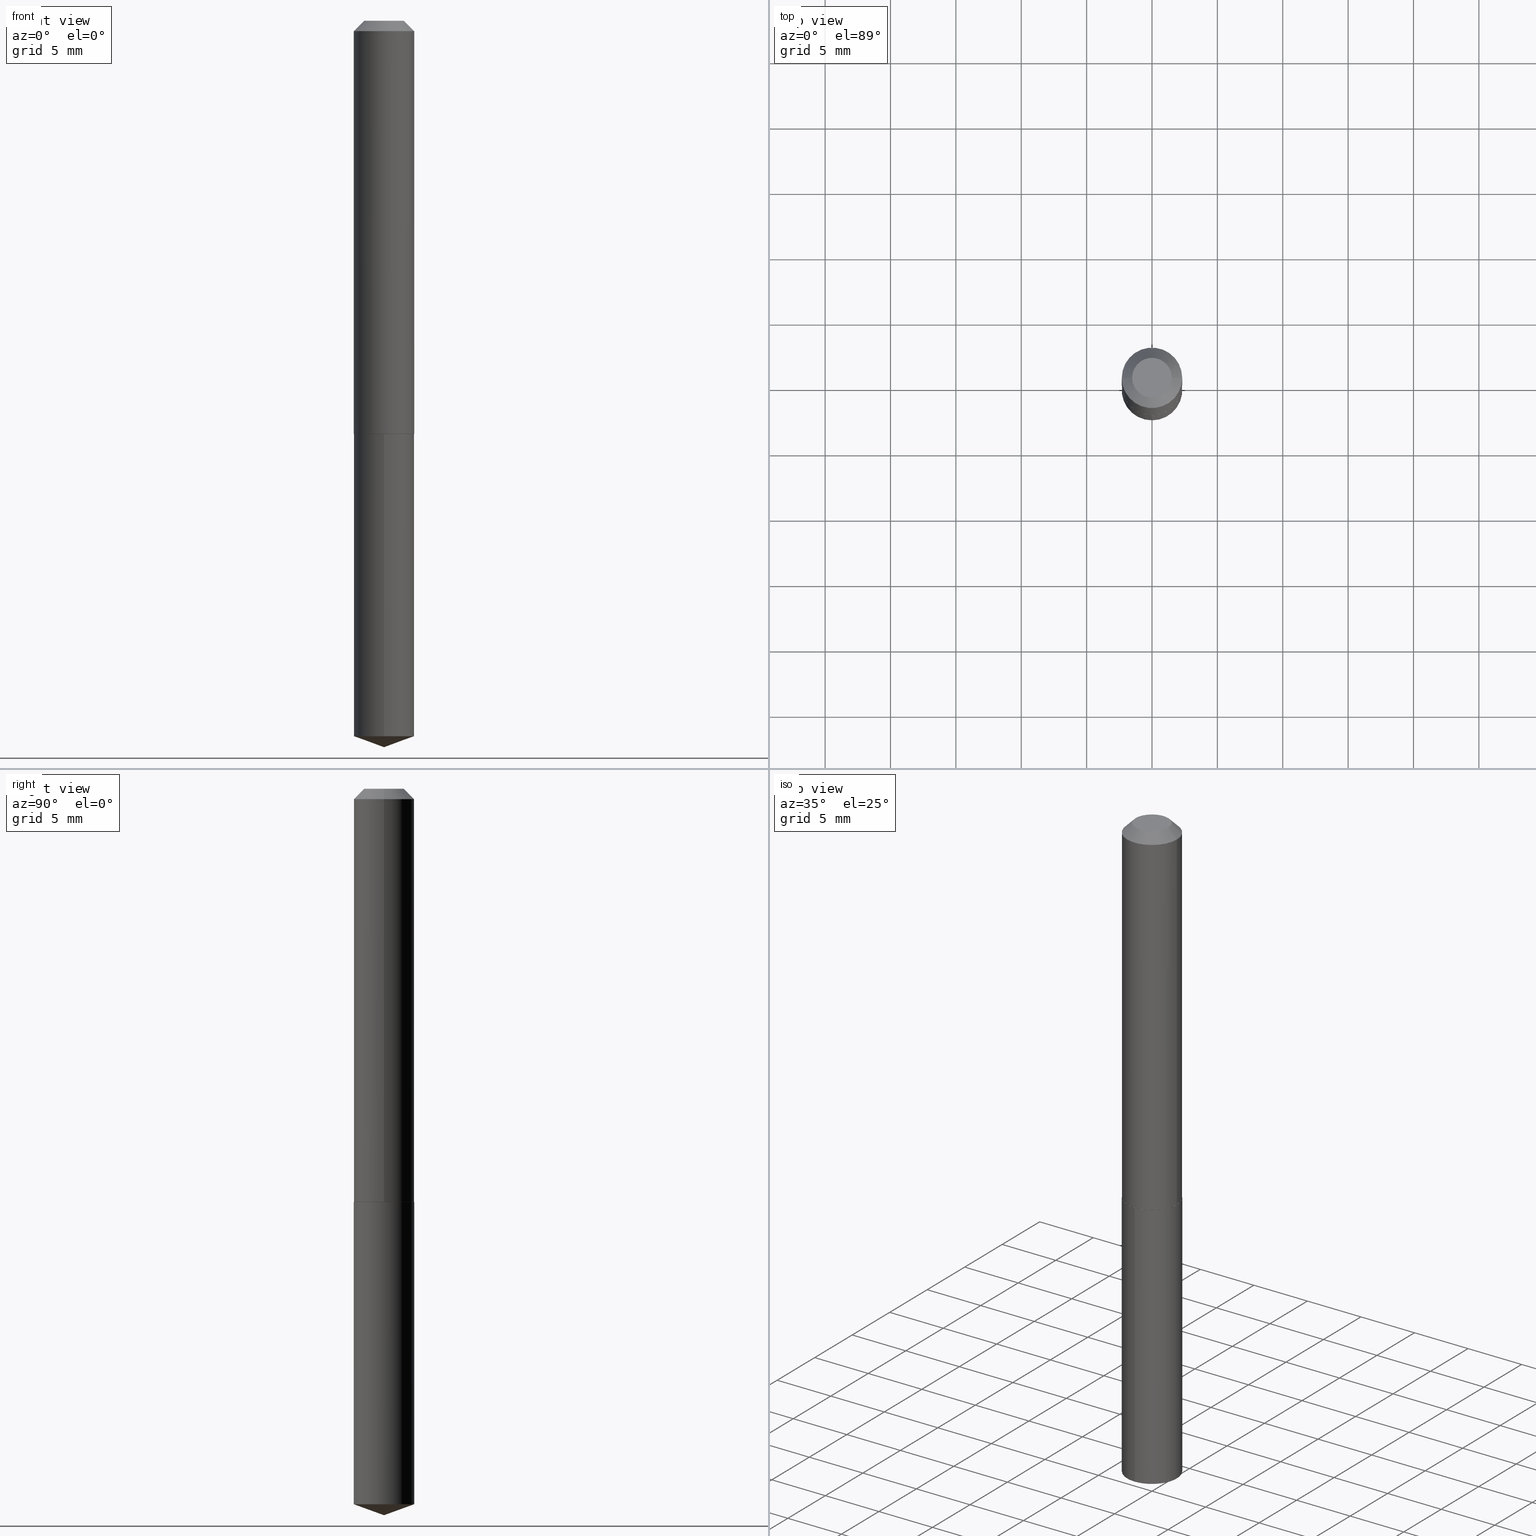
[diagram: canonical four-view strip — front | top / right | iso, engineering-drawing reading convention]
A machine part, canonical four-view strip (front | top / right | iso — engineering-drawing reading convention). The complete STEP part file that produces these views, byte-faithful:
ISO-10303-21;
HEADER;
FILE_DESCRIPTION (( 'STEP AP203' ),
    '1' );
FILE_NAME ('56223.STEP',
    '2024-04-22T21:05:50',
    ( '' ),
    ( '' ),
    'SwSTEP 2.0',
    'SolidWorks 2023',
    '' );
FILE_SCHEMA (( 'CONFIG_CONTROL_DESIGN' ));
ENDSEC;

DATA;
#1 = CARTESIAN_POINT ( 'NONE',  ( 3.043385929297402732E-29, -4.345148526190295143E-15, -1.244500000000000162 ) ) ;
#2 = DIRECTION ( 'NONE',  ( -6.982962677686265922E-15, -1.000000000000000000, 3.002030762268421058E-15 ) ) ;
#3 = ORIENTED_EDGE ( 'NONE', *, *, #109, .T. ) ;
#4 = AXIS2_PLACEMENT_3D ( 'NONE', #359, #114, #205 ) ;
#5 = LOCAL_TIME ( 17, 5, 50.00000000000000000, #80 ) ;
#6 = DIRECTION ( 'NONE',  ( -6.561838499445211107E-15, -0.9396926207859085389, 0.3420201433256681578 ) ) ;
#7 = EDGE_CURVE ( 'NONE', #111, #283, #11, .T. ) ;
#8 = PRODUCT ( '56223', '56223', '', ( #290 ) ) ;
#9 = APPROVAL ( #166, 'UNSPECIFIED' ) ;
#10 = CARTESIAN_POINT ( 'NONE',  ( -0.09099999999999999756, -1.579661899138169232E-15, -0.03125000000000020817 ) ) ;
#11 = CIRCLE ( 'NONE', #255, 0.09050000000000009426 ) ;
#12 = APPROVAL_PERSON_ORGANIZATION ( #42, #300, #165 ) ;
#13 = CYLINDRICAL_SURFACE ( 'NONE', #68, 0.09100000000000006695 ) ;
#14 = ORIENTED_EDGE ( 'NONE', *, *, #206, .F. ) ;
#15 = CARTESIAN_POINT ( 'NONE',  ( 0.000000000000000000, 0.000000000000000000, 0.000000000000000000 ) ) ;
#16 = ORIENTED_EDGE ( 'NONE', *, *, #345, .F. ) ;
#17 = DIRECTION ( 'NONE',  ( 1.000000000000000000, -6.982962677686265922E-15, 0.000000000000000000 ) ) ;
#18 = CALENDAR_DATE ( 2024, 22, 4 ) ;
#19 = AXIS2_PLACEMENT_3D ( 'NONE', #276, #187, #338 ) ;
#20 = PERSON_AND_ORGANIZATION ( #132, #229 ) ;
#21 = SHAPE_DEFINITION_REPRESENTATION ( #215, #350 ) ;
#22 = PERSON_AND_ORGANIZATION_ROLE ( 'design_supplier' ) ;
#23 = CARTESIAN_POINT ( 'NONE',  ( 5.349493277448255255E-29, -7.637575014641907498E-15, -2.187500000000000000 ) ) ;
#24 = DIRECTION ( 'NONE',  ( 1.000000000000000000, -6.982962677686269077E-15, 0.000000000000000000 ) ) ;
#25 = CARTESIAN_POINT ( 'NONE',  ( 7.642090019328602662E-31, -1.091087918388490267E-16, -0.03125000000000020817 ) ) ;
#26 = CARTESIAN_POINT ( 'NONE',  ( 6.465938895417437096E-16, 0.09099999999999247580, -2.154378708681776278 ) ) ;
#27 = CIRCLE ( 'NONE', #108, 0.09099999999999999756 ) ;
#28 = MANIFOLD_SOLID_BREP ( 'Body-Move/Copy2[1]', #174 ) ;
#29 = CARTESIAN_POINT ( 'NONE',  ( 3.042163194894310491E-29, -4.343402785520873640E-15, -1.244000000000000217 ) ) ;
#30 = DIRECTION ( 'NONE',  ( -2.445468806185136597E-29, 3.491481338843145583E-15, 1.000000000000000000 ) ) ;
#31 = CARTESIAN_POINT ( 'NONE',  ( -6.354496036694198049E-16, -0.09100000000000434131, -1.244499999999999718 ) ) ;
#32 = EDGE_CURVE ( 'NONE', #242, #264, #194, .T. ) ;
#33 = LOCAL_TIME ( 17, 5, 50.00000000000000000, #140 ) ;
#34 = LINE ( 'NONE', #343, #383 ) ;
#35 = LINE ( 'NONE', #124, #262 ) ;
#36 = DIRECTION ( 'NONE',  ( 1.000000000000000000, -6.982962677686265922E-15, 4.876176775795936353E-29 ) ) ;
#37 = ORIENTED_EDGE ( 'NONE', *, *, #32, .F. ) ;
#38 = AXIS2_PLACEMENT_3D ( 'NONE', #85, #147, #24 ) ;
#39 = DIRECTION ( 'NONE',  ( 0.7071067811868372299, -2.468850131085291414E-15, 0.7071067811862578045 ) ) ;
#40 = EDGE_CURVE ( 'NONE', #340, #252, #84, .T. ) ;
#41 = ORIENTED_EDGE ( 'NONE', *, *, #387, .T. ) ;
#42 = PERSON_AND_ORGANIZATION ( #132, #229 ) ;
#43 = CARTESIAN_POINT ( 'NONE',  ( 6.465938895417215229E-16, 0.09099999999999566769, -1.244500000000000384 ) ) ;
#44 = APPROVAL_ROLE ( '' ) ;
#45 = EDGE_CURVE ( 'NONE', #252, #340, #191, .T. ) ;
#46 = APPROVAL_ROLE ( '' ) ;
#47 = AXIS2_PLACEMENT_3D ( 'NONE', #161, #284, #17 ) ;
#48 = LOCAL_TIME ( 17, 5, 50.00000000000000000, #197 ) ;
#49 = DATE_AND_TIME ( #356, #354 ) ;
#50 = APPLICATION_CONTEXT ( 'configuration controlled 3d designs of mechanical parts and assemblies' ) ;
#51 = CARTESIAN_POINT ( 'NONE',  ( 7.642090019328602662E-31, -1.091087918388490267E-16, -0.03125000000000020817 ) ) ;
#52 = AXIS2_PLACEMENT_3D ( 'NONE', #116, #236, #150 ) ;
#53 = DIRECTION ( 'NONE',  ( -2.445375204196861726E-29, 3.491615382217849470E-15, 1.000000000000000000 ) ) ;
#54 = PRODUCT_DEFINITION ( 'UNKNOWN', '', #120, #189 ) ;
#55 = CARTESIAN_POINT ( 'NONE',  ( 0.09099999999999999756, -7.445583955082992766E-16, -0.03125000000000020817 ) ) ;
#56 = FACE_OUTER_BOUND ( 'NONE', #363, .T. ) ;
#57 = EDGE_CURVE ( 'NONE', #219, #242, #294, .T. ) ;
#58 = DIRECTION ( 'NONE',  ( 1.000000000000000000, -6.982962677686265922E-15, 4.876176775795935793E-29 ) ) ;
#59 = AXIS2_PLACEMENT_3D ( 'NONE', #1, #86, #234 ) ;
#60 = CONICAL_SURFACE ( 'NONE', #296, 0.09099999999999999756, 0.7853981633974449483 ) ;
#61 = CONICAL_SURFACE ( 'NONE', #337, 0.09099999999999999756, 0.7853981633974449483 ) ;
#62 = CARTESIAN_POINT ( 'NONE',  ( -6.354496036693975195E-16, -0.09100000000000753320, -2.154378708681775834 ) ) ;
#63 = DIRECTION ( 'NONE',  ( -2.445468806185136597E-29, 3.491481338843145583E-15, 1.000000000000000000 ) ) ;
#64 = ADVANCED_FACE ( 'NONE', ( #231 ), #287, .T. ) ;
#65 =( LENGTH_UNIT ( ) NAMED_UNIT ( * ) SI_UNIT ( $, .METRE. ) );
#66 = CC_DESIGN_PERSON_AND_ORGANIZATION_ASSIGNMENT ( #230, #133, ( #8 ) ) ;
#67 = ORIENTED_EDGE ( 'NONE', *, *, #7, .T. ) ;
#68 = AXIS2_PLACEMENT_3D ( 'NONE', #15, #277, #36 ) ;
#69 = DIRECTION ( 'NONE',  ( -6.982962677686268288E-15, -1.000000000000000000, 3.475157955500686293E-15 ) ) ;
#70 = VERTEX_POINT ( 'NONE', #171 ) ;
#71 = FACE_OUTER_BOUND ( 'NONE', #323, .T. ) ;
#72 = ORIENTED_EDGE ( 'NONE', *, *, #235, .F. ) ;
#73 = LINE ( 'NONE', #190, #207 ) ;
#74 = ORIENTED_EDGE ( 'NONE', *, *, #387, .F. ) ;
#75 = AXIS2_PLACEMENT_3D ( 'NONE', #324, #53, #265 ) ;
#76 = DIRECTION ( 'NONE',  ( -2.445375204196861726E-29, 3.491615382217849470E-15, 1.000000000000000000 ) ) ;
#77 = DIRECTION ( 'NONE',  ( 1.000000000000000000, -6.982962677686266711E-15, 0.000000000000000000 ) ) ;
#78 = ADVANCED_FACE ( 'NONE', ( #232 ), #360, .T. ) ;
#79 = CARTESIAN_POINT ( 'NONE',  ( 3.043385929297402172E-29, -4.345148526190294354E-15, -1.244499999999999718 ) ) ;
#80 = COORDINATED_UNIVERSAL_TIME_OFFSET ( 5, 0, .BEHIND. ) ;
#81 = CALENDAR_DATE ( 2024, 22, 4 ) ;
#82 = DIRECTION ( 'NONE',  ( 0.000000000000000000, 0.000000000000000000, 1.000000000000000000 ) ) ;
#83 = ORIENTED_EDGE ( 'NONE', *, *, #282, .F. ) ;
#84 = CIRCLE ( 'NONE', #182, 0.09099999999999999756 ) ;
#85 = CARTESIAN_POINT ( 'NONE',  ( 3.042163194894310491E-29, -4.343402785520873640E-15, -1.244000000000000217 ) ) ;
#86 = DIRECTION ( 'NONE',  ( -2.445375204196861726E-29, 3.491615382217849470E-15, 1.000000000000000000 ) ) ;
#87 = ADVANCED_FACE ( 'NONE', ( #56 ), #149, .T. ) ;
#88 = DIRECTION ( 'NONE',  ( -2.445375204196861726E-29, 3.491615382217849470E-15, 1.000000000000000000 ) ) ;
#89 = DIRECTION ( 'NONE',  ( 1.000000000000000000, -6.982962677686266711E-15, 0.000000000000000000 ) ) ;
#90 = AXIS2_PLACEMENT_3D ( 'NONE', #210, #305, #281 ) ;
#91 = DIRECTION ( 'NONE',  ( 1.000000000000000000, -6.982962677686269077E-15, 0.000000000000000000 ) ) ;
#92 = ORIENTED_EDGE ( 'NONE', *, *, #45, .T. ) ;
#93 = LENGTH_MEASURE_WITH_UNIT ( LENGTH_MEASURE( 0.02539999999999999897 ), #65 );
#94 = ORIENTED_EDGE ( 'NONE', *, *, #345, .T. ) ;
#95 = AXIS2_PLACEMENT_3D ( 'NONE', #208, #299, #330 ) ;
#96 = CARTESIAN_POINT ( 'NONE',  ( 5.349258259180634973E-29, -7.637908648601547367E-15, -2.187500000000000000 ) ) ;
#97 = EDGE_CURVE ( 'NONE', #70, #264, #221, .T. ) ;
#98 = ORIENTED_EDGE ( 'NONE', *, *, #131, .T. ) ;
#99 = LINE ( 'NONE', #341, #288 ) ;
#100 = ORIENTED_EDGE ( 'NONE', *, *, #7, .F. ) ;
#101 = PLANE ( 'NONE',  #135 ) ;
#102 = ORIENTED_EDGE ( 'NONE', *, *, #57, .F. ) ;
#103 = CIRCLE ( 'NONE', #202, 0.09050000000000009426 ) ;
#104 = CONICAL_SURFACE ( 'NONE', #95, 0.09100000000000013634, 0.7853981633978580623 ) ;
#105 =( NAMED_UNIT ( * ) SI_UNIT ( $, .STERADIAN. ) SOLID_ANGLE_UNIT ( ) );
#106 = ORIENTED_EDGE ( 'NONE', *, *, #334, .T. ) ;
#107 = APPROVAL_STATUS ( 'not_yet_approved' ) ;
#108 = AXIS2_PLACEMENT_3D ( 'NONE', #346, #76, #275 ) ;
#109 = EDGE_CURVE ( 'NONE', #367, #311, #195, .T. ) ;
#110 = PERSON_AND_ORGANIZATION ( #132, #229 ) ;
#111 = VERTEX_POINT ( 'NONE', #179 ) ;
#112 = CC_DESIGN_PERSON_AND_ORGANIZATION_ASSIGNMENT ( #381, #260, ( #169 ) ) ;
#113 = CARTESIAN_POINT ( 'NONE',  ( 3.043385929297402172E-29, -4.345148526190294354E-15, -1.244499999999999718 ) ) ;
#114 = DIRECTION ( 'NONE',  ( -2.445375204196861726E-29, 3.491615382217849470E-15, 1.000000000000000000 ) ) ;
#115 = DIRECTION ( 'NONE',  ( -2.445468806185136597E-29, 3.491481338843145583E-15, 1.000000000000000000 ) ) ;
#116 = CARTESIAN_POINT ( 'NONE',  ( 2.246126659432003351E-48, -3.206873584422742284E-34, -9.184850993605184086E-20 ) ) ;
#117 = ORIENTED_EDGE ( 'NONE', *, *, #97, .T. ) ;
#118 = PLANE ( 'NONE',  #52 ) ;
#119 = AXIS2_PLACEMENT_3D ( 'NONE', #361, #303, #175 ) ;
#120 = PRODUCT_DEFINITION_FORMATION_WITH_SPECIFIED_SOURCE ( 'ANY', '', #8, .NOT_KNOWN. ) ;
#121 = ORIENTED_EDGE ( 'NONE', *, *, #57, .T. ) ;
#122 = CARTESIAN_POINT ( 'NONE',  ( -0.05974999999999999756, 4.717864159111778069E-16, -1.836970198752120845E-19 ) ) ;
#123 = ORIENTED_EDGE ( 'NONE', *, *, #177, .T. ) ;
#124 = CARTESIAN_POINT ( 'NONE',  ( 0.09100000000000006695, -6.354496036694506690E-16, 4.437320865974305243E-30 ) ) ;
#125 = DIRECTION ( 'NONE',  ( -2.445468806185136597E-29, 3.491481338843145583E-15, 1.000000000000000000 ) ) ;
#126 = FACE_OUTER_BOUND ( 'NONE', #374, .T. ) ;
#127 = CC_DESIGN_PERSON_AND_ORGANIZATION_ASSIGNMENT ( #322, #382, ( #54 ) ) ;
#128 = ORIENTED_EDGE ( 'NONE', *, *, #355, .F. ) ;
#129 = LINE ( 'NONE', #377, #148 ) ;
#130 = EDGE_LOOP ( 'NONE', ( #98, #123 ) ) ;
#131 = EDGE_CURVE ( 'NONE', #351, #222, #168, .T. ) ;
#132 = PERSON ( 'UNSPECIFIED', 'UNSPECIFIED', 'UNSPECIFIED', ('UNSPECIFIED'), ('UNSPECIFIED'), ('UNSPECIFIED') ) ;
#133 = PERSON_AND_ORGANIZATION_ROLE ( 'design_owner' ) ;
#134 = EDGE_LOOP ( 'NONE', ( #3, #94, #192, #378 ) ) ;
#135 = AXIS2_PLACEMENT_3D ( 'NONE', #185, #243, #220 ) ;
#136 = DATE_AND_TIME ( #18, #48 ) ;
#137 = CARTESIAN_POINT ( 'NONE',  ( 0.000000000000000000, 0.000000000000000000, 0.000000000000000000 ) ) ;
#138 = ADVANCED_FACE ( 'NONE', ( #233 ), #118, .F. ) ;
#139 = VECTOR ( 'NONE', #201, 39.37007874015748143 ) ;
#140 = COORDINATED_UNIVERSAL_TIME_OFFSET ( 5, 0, .BEHIND. ) ;
#141 = CC_DESIGN_APPROVAL ( #9, ( #54 ) ) ;
#142 = DIRECTION ( 'NONE',  ( 6.676917655467978384E-15, 0.9396926207859109814, 0.3420201433256616075 ) ) ;
#143 = APPROVAL ( #286, 'UNSPECIFIED' ) ;
#144 = CARTESIAN_POINT ( 'NONE',  ( 0.05974999999999999756, -5.716644325014536685E-16, -1.836970198686465412E-19 ) ) ;
#145 = DIRECTION ( 'NONE',  ( -1.000000000000000000, 6.982962677686265922E-15, 0.000000000000000000 ) ) ;
#146 = AXIS2_PLACEMENT_3D ( 'NONE', #29, #30, #91 ) ;
#147 = DIRECTION ( 'NONE',  ( -2.445468806185136597E-29, 3.491481338843145583E-15, 1.000000000000000000 ) ) ;
#148 = VECTOR ( 'NONE', #218, 39.37007874015748143 ) ;
#149 = CYLINDRICAL_SURFACE ( 'NONE', #4, 0.09099999999999999756 ) ;
#150 = DIRECTION ( 'NONE',  ( -1.000000000000000000, 6.982962677686265922E-15, -4.876176775795935793E-29 ) ) ;
#151 = LINE ( 'NONE', #31, #347 ) ;
#152 = AXIS2_PLACEMENT_3D ( 'NONE', #362, #115, #204 ) ;
#153 = DIRECTION ( 'NONE',  ( -2.445375204196861726E-29, 3.491615382217849470E-15, 1.000000000000000000 ) ) ;
#154 = EDGE_CURVE ( 'NONE', #311, #367, #163, .T. ) ;
#155 = CARTESIAN_POINT ( 'NONE',  ( 6.465938895417439069E-16, 0.09099999999999563993, -1.244500000000000384 ) ) ;
#156 = CARTESIAN_POINT ( 'NONE',  ( -0.09050000000000009426, -3.699458123153292308E-15, -1.244499999999999718 ) ) ;
#157 = ORIENTED_EDGE ( 'NONE', *, *, #206, .T. ) ;
#158 = CARTESIAN_POINT ( 'NONE',  ( 0.09100000000000013634, -4.978852389190325393E-15, -1.244000000000000217 ) ) ;
#159 = VERTEX_POINT ( 'NONE', #62 ) ;
#160 = APPROVAL_DATE_TIME ( #225, #300 ) ;
#161 = CARTESIAN_POINT ( 'NONE',  ( 7.642090019328602662E-31, -1.091087918388490267E-16, -0.03125000000000020817 ) ) ;
#162 = DATE_AND_TIME ( #263, #33 ) ;
#163 = CIRCLE ( 'NONE', #152, 0.09100000000000013634 ) ;
#164 = PERSON_AND_ORGANIZATION_ROLE ( 'creator' ) ;
#165 = APPROVAL_ROLE ( '' ) ;
#166 = APPROVAL_STATUS ( 'not_yet_approved' ) ;
#167 = DIRECTION ( 'NONE',  ( 1.000000000000000000, -6.982962677686265922E-15, 0.000000000000000000 ) ) ;
#168 = CIRCLE ( 'NONE', #336, 0.05974999999999999756 ) ;
#169 = SECURITY_CLASSIFICATION ( '', '', #385 ) ;
#170 = EDGE_LOOP ( 'NONE', ( #102, #344, #74 ) ) ;
#171 = CARTESIAN_POINT ( 'NONE',  ( -6.354496036694198049E-16, -0.09100000000000434131, -1.244499999999999718 ) ) ;
#172 = APPLICATION_CONTEXT ( 'configuration controlled 3d designs of mechanical parts and assemblies' ) ;
#173 = DIRECTION ( 'NONE',  ( 1.000000000000000000, -6.982962677686266711E-15, 4.876164187836129365E-29 ) ) ;
#174 = CLOSED_SHELL ( 'NONE', ( #289, #285, #64, #87, #369 ) ) ;
#175 = DIRECTION ( 'NONE',  ( 1.000000000000000000, -6.982962677686265922E-15, 4.876176775795936353E-29 ) ) ;
#176 = DIMENSIONAL_EXPONENTS ( 1.000000000000000000, 0.000000000000000000, 0.000000000000000000, 0.000000000000000000, 0.000000000000000000, 0.000000000000000000, 0.000000000000000000 ) ;
#177 = EDGE_CURVE ( 'NONE', #222, #351, #278, .T. ) ;
#178 = CARTESIAN_POINT ( 'NONE',  ( -0.09100000000000013634, -3.696808895979181896E-15, -1.244000000000000217 ) ) ;
#179 = CARTESIAN_POINT ( 'NONE',  ( 0.09050000000000009426, -4.977106648520902312E-15, -1.244499999999999718 ) ) ;
#180 = EDGE_LOOP ( 'NONE', ( #67, #250, #247, #370 ) ) ;
#181 = FACE_OUTER_BOUND ( 'NONE', #314, .T. ) ;
#182 = AXIS2_PLACEMENT_3D ( 'NONE', #51, #125, #167 ) ;
#183 = VECTOR ( 'NONE', #6, 39.37007874015748854 ) ;
#184 = ORIENTED_EDGE ( 'NONE', *, *, #339, .F. ) ;
#185 = CARTESIAN_POINT ( 'NONE',  ( 3.043385929297402732E-29, -4.345148526190295143E-15, -1.244500000000000162 ) ) ;
#186 = CC_DESIGN_PERSON_AND_ORGANIZATION_ASSIGNMENT ( #259, #164, ( #120 ) ) ;
#187 = DIRECTION ( 'NONE',  ( -2.445375204196861726E-29, 3.491615382217849470E-15, 1.000000000000000000 ) ) ;
#188 = ORIENTED_EDGE ( 'NONE', *, *, #154, .F. ) ;
#189 = DESIGN_CONTEXT ( 'detailed design', #172, 'design' ) ;
#190 = CARTESIAN_POINT ( 'NONE',  ( 0.09100000000000013634, -4.978852389190325393E-15, -1.244000000000000217 ) ) ;
#191 = CIRCLE ( 'NONE', #47, 0.09099999999999999756 ) ;
#192 = ORIENTED_EDGE ( 'NONE', *, *, #45, .F. ) ;
#193 = DATE_TIME_ROLE ( 'classification_date' ) ;
#194 = LINE ( 'NONE', #43, #139 ) ;
#195 = CIRCLE ( 'NONE', #146, 0.09100000000000013634 ) ;
#196 = AXIS2_PLACEMENT_3D ( 'NONE', #216, #153, #69 ) ;
#197 = COORDINATED_UNIVERSAL_TIME_OFFSET ( 5, 0, .BEHIND. ) ;
#198 = COORDINATED_UNIVERSAL_TIME_OFFSET ( 5, 0, .BEHIND. ) ;
#199 = EDGE_LOOP ( 'NONE', ( #117, #214 ) ) ;
#200 = EDGE_CURVE ( 'NONE', #283, #111, #103, .T. ) ;
#201 = DIRECTION ( 'NONE',  ( -2.445375204196862006E-29, 3.491615382217849075E-15, 1.000000000000000000 ) ) ;
#202 = AXIS2_PLACEMENT_3D ( 'NONE', #113, #63, #89 ) ;
#203 = LINE ( 'NONE', #178, #307 ) ;
#204 = DIRECTION ( 'NONE',  ( 1.000000000000000000, -6.982962677686269077E-15, 0.000000000000000000 ) ) ;
#205 = DIRECTION ( 'NONE',  ( -6.982962677686265922E-15, -1.000000000000000000, 3.002030762268421058E-15 ) ) ;
#206 = EDGE_CURVE ( 'NONE', #159, #242, #329, .T. ) ;
#207 = VECTOR ( 'NONE', #39, 39.37007874015748143 ) ;
#208 = CARTESIAN_POINT ( 'NONE',  ( 3.042163194894310491E-29, -4.343402785520873640E-15, -1.244000000000000217 ) ) ;
#209 = FACE_OUTER_BOUND ( 'NONE', #180, .T. ) ;
#210 = CARTESIAN_POINT ( 'NONE',  ( 3.043385929297402732E-29, -4.345148526190295143E-15, -1.244500000000000162 ) ) ;
#211 =( CONVERSION_BASED_UNIT ( 'INCH', #93 ) LENGTH_UNIT ( ) NAMED_UNIT ( #176 ) );
#212 = AXIS2_PLACEMENT_3D ( 'NONE', #302, #239, #272 ) ;
#213 = LOCAL_TIME ( 17, 5, 50.00000000000000000, #293 ) ;
#214 = ORIENTED_EDGE ( 'NONE', *, *, #364, .T. ) ;
#215 = PRODUCT_DEFINITION_SHAPE ( 'NONE', 'NONE',  #54 ) ;
#216 = CARTESIAN_POINT ( 'NONE',  ( -9.092523959160407980E-28, 1.298274306966400704E-13, 37.18257874015748143 ) ) ;
#217 = ORIENTED_EDGE ( 'NONE', *, *, #40, .F. ) ;
#218 = DIRECTION ( 'NONE',  ( 0.7071067811865451302, -7.319954787623248157E-15, -0.7071067811865499042 ) ) ;
#219 = VERTEX_POINT ( 'NONE', #389 ) ;
#220 = DIRECTION ( 'NONE',  ( 6.982962677686265922E-15, 1.000000000000000000, -3.491615382217849075E-15 ) ) ;
#221 = CIRCLE ( 'NONE', #59, 0.09099999999999999756 ) ;
#222 = VERTEX_POINT ( 'NONE', #144 ) ;
#223 = CC_DESIGN_SECURITY_CLASSIFICATION ( #169, ( #120 ) ) ;
#224 = ORIENTED_EDGE ( 'NONE', *, *, #177, .F. ) ;
#225 = DATE_AND_TIME ( #292, #5 ) ;
#226 = ADVANCED_FACE ( 'NONE', ( #365 ), #104, .T. ) ;
#227 = ADVANCED_FACE ( 'NONE', ( #209 ), #279, .T. ) ;
#228 = AXIS2_PLACEMENT_3D ( 'NONE', #328, #388, #58 ) ;
#229 = ORGANIZATION ( 'UNSPECIFIED', 'UNSPECIFIED', '' ) ;
#230 = PERSON_AND_ORGANIZATION ( #132, #229 ) ;
#231 = FACE_OUTER_BOUND ( 'NONE', #170, .T. ) ;
#232 = FACE_OUTER_BOUND ( 'NONE', #134, .T. ) ;
#233 = FACE_OUTER_BOUND ( 'NONE', #130, .T. ) ;
#234 = DIRECTION ( 'NONE',  ( -6.982962677686265922E-15, -1.000000000000000000, 3.002030762268421058E-15 ) ) ;
#235 = EDGE_CURVE ( 'NONE', #283, #311, #203, .T. ) ;
#236 = DIRECTION ( 'NONE',  ( 2.438088387897960049E-29, -3.491481338843145188E-15, -1.000000000000000000 ) ) ;
#237 = ORIENTED_EDGE ( 'NONE', *, *, #364, .F. ) ;
#238 = AXIS2_PLACEMENT_3D ( 'NONE', #137, #82, #353 ) ;
#239 = DIRECTION ( 'NONE',  ( -2.445468806185136597E-29, 3.491481338843145583E-15, 1.000000000000000000 ) ) ;
#240 = ORIENTED_EDGE ( 'NONE', *, *, #200, .T. ) ;
#241 = DIRECTION ( 'NONE',  ( -2.445468806185136877E-29, 3.491481338843145188E-15, 1.000000000000000000 ) ) ;
#242 = VERTEX_POINT ( 'NONE', #26 ) ;
#243 = DIRECTION ( 'NONE',  ( 2.445375204196861726E-29, -3.491615382217849075E-15, -1.000000000000000000 ) ) ;
#244 = EDGE_LOOP ( 'NONE', ( #72, #240, #256, #188 ) ) ;
#245 = DIRECTION ( 'NONE',  ( -2.445468806185136877E-29, 3.491481338843145188E-15, 1.000000000000000000 ) ) ;
#246 = AXIS2_PLACEMENT_3D ( 'NONE', #327, #88, #2 ) ;
#247 = ORIENTED_EDGE ( 'NONE', *, *, #109, .F. ) ;
#248 = CARTESIAN_POINT ( 'NONE',  ( 7.642090019328602662E-31, -1.091087918388490267E-16, -0.03125000000000020817 ) ) ;
#249 = ADVANCED_FACE ( 'NONE', ( #326 ), #390, .F. ) ;
#250 = ORIENTED_EDGE ( 'NONE', *, *, #235, .T. ) ;
#251 = FACE_OUTER_BOUND ( 'NONE', #199, .T. ) ;
#252 = VERTEX_POINT ( 'NONE', #55 ) ;
#253 = CC_DESIGN_DATE_AND_TIME_ASSIGNMENT ( #162, #254, ( #54 ) ) ;
#254 = DATE_TIME_ROLE ( 'creation_date' ) ;
#255 = AXIS2_PLACEMENT_3D ( 'NONE', #79, #280, #77 ) ;
#256 = ORIENTED_EDGE ( 'NONE', *, *, #358, .T. ) ;
#257 = CC_DESIGN_APPROVAL ( #300, ( #169 ) ) ;
#258 = ADVANCED_FACE ( 'NONE', ( #298 ), #60, .T. ) ;
#259 = PERSON_AND_ORGANIZATION ( #132, #229 ) ;
#260 = PERSON_AND_ORGANIZATION_ROLE ( 'classification_officer' ) ;
#261 = CC_DESIGN_PERSON_AND_ORGANIZATION_ASSIGNMENT ( #20, #22, ( #120 ) ) ;
#262 = VECTOR ( 'NONE', #241, 39.37007874015748143 ) ;
#263 = CALENDAR_DATE ( 2024, 22, 4 ) ;
#264 = VERTEX_POINT ( 'NONE', #155 ) ;
#265 = DIRECTION ( 'NONE',  ( -6.982962677686268288E-15, -1.000000000000000000, 3.475157955500686293E-15 ) ) ;
#266 = DIRECTION ( 'NONE',  ( 2.445468806185136597E-29, -3.491481338843145583E-15, -1.000000000000000000 ) ) ;
#267 = CLOSED_SHELL ( 'NONE', ( #258, #78, #227, #249, #226, #269, #316, #138 ) ) ;
#268 = CIRCLE ( 'NONE', #90, 0.09099999999999999756 ) ;
#269 = ADVANCED_FACE ( 'NONE', ( #71 ), #13, .T. ) ;
#270 = CARTESIAN_POINT ( 'NONE',  ( 4.492253318864006702E-48, -6.413747168845484567E-34, -1.836970198721036817E-19 ) ) ;
#271 = DIRECTION ( 'NONE',  ( -2.445468806185136597E-29, 3.491481338843145583E-15, 1.000000000000000000 ) ) ;
#272 = DIRECTION ( 'NONE',  ( 1.000000000000000000, -6.982962677686266711E-15, 4.876164187836129365E-29 ) ) ;
#273 =( GEOMETRIC_REPRESENTATION_CONTEXT ( 3 ) GLOBAL_UNCERTAINTY_ASSIGNED_CONTEXT ( ( #295 ) ) GLOBAL_UNIT_ASSIGNED_CONTEXT ( ( #211, #349, #105 ) ) REPRESENTATION_CONTEXT ( 'NONE', 'WORKASPACE' ) );
#274 = DIRECTION ( 'NONE',  ( 2.445468806185136597E-29, -3.491481338843145583E-15, -1.000000000000000000 ) ) ;
#275 = DIRECTION ( 'NONE',  ( -6.982962677686265922E-15, -1.000000000000000000, 3.002030762268421058E-15 ) ) ;
#276 = CARTESIAN_POINT ( 'NONE',  ( 3.043385929297402732E-29, -4.345148526190295143E-15, -1.244500000000000162 ) ) ;
#277 = DIRECTION ( 'NONE',  ( -2.445468806185136597E-29, 3.491481338843145583E-15, 1.000000000000000000 ) ) ;
#278 = CIRCLE ( 'NONE', #212, 0.05974999999999999756 ) ;
#279 = CONICAL_SURFACE ( 'NONE', #38, 0.09100000000000013634, 0.7853981633978580623 ) ;
#280 = DIRECTION ( 'NONE',  ( -2.445468806185136597E-29, 3.491481338843145583E-15, 1.000000000000000000 ) ) ;
#281 = DIRECTION ( 'NONE',  ( -6.982962677686265922E-15, -1.000000000000000000, 3.002030762268421058E-15 ) ) ;
#282 = EDGE_CURVE ( 'NONE', #159, #70, #151, .T. ) ;
#283 = VERTEX_POINT ( 'NONE', #156 ) ;
#284 = DIRECTION ( 'NONE',  ( -2.445468806185136597E-29, 3.491481338843145583E-15, 1.000000000000000000 ) ) ;
#285 = ADVANCED_FACE ( 'NONE', ( #181 ), #325, .T. ) ;
#286 = APPROVAL_STATUS ( 'not_yet_approved' ) ;
#287 = CONICAL_SURFACE ( 'NONE', #75, 108.1684023407345165, 1.221730476396034826 ) ;
#288 = VECTOR ( 'NONE', #333, 39.37007874015748143 ) ;
#289 = ADVANCED_FACE ( 'NONE', ( #366 ), #368, .T. ) ;
#290 = MECHANICAL_CONTEXT ( 'NONE', #50, 'mechanical' ) ;
#291 = MANIFOLD_SOLID_BREP ( 'Body-Move/Copy2[2]', #267 ) ;
#292 = CALENDAR_DATE ( 2024, 22, 4 ) ;
#293 = COORDINATED_UNIVERSAL_TIME_OFFSET ( 5, 0, .BEHIND. ) ;
#294 = LINE ( 'NONE', #23, #320 ) ;
#295 = UNCERTAINTY_MEASURE_WITH_UNIT (LENGTH_MEASURE( 1.000000000000000082E-05 ), #211, 'distance_accuracy_value', 'NONE');
#296 = AXIS2_PLACEMENT_3D ( 'NONE', #25, #266, #145 ) ;
#297 = EDGE_LOOP ( 'NONE', ( #100, #376 ) ) ;
#298 = FACE_OUTER_BOUND ( 'NONE', #332, .T. ) ;
#299 = DIRECTION ( 'NONE',  ( -2.445468806185136597E-29, 3.491481338843145583E-15, 1.000000000000000000 ) ) ;
#300 = APPROVAL ( #107, 'UNSPECIFIED' ) ;
#301 = APPROVAL_PERSON_ORGANIZATION ( #319, #143, #46 ) ;
#302 = CARTESIAN_POINT ( 'NONE',  ( 4.492253318864006702E-48, -6.413747168845484567E-34, -1.836970198721036817E-19 ) ) ;
#303 = DIRECTION ( 'NONE',  ( -2.445468806185136597E-29, 3.491481338843145583E-15, 1.000000000000000000 ) ) ;
#304 = ORIENTED_EDGE ( 'NONE', *, *, #154, .T. ) ;
#305 = DIRECTION ( 'NONE',  ( -2.445375204196861726E-29, 3.491615382217849470E-15, 1.000000000000000000 ) ) ;
#306 = ORIENTED_EDGE ( 'NONE', *, *, #97, .F. ) ;
#307 = VECTOR ( 'NONE', #331, 39.37007874015748143 ) ;
#308 = ORIENTED_EDGE ( 'NONE', *, *, #282, .T. ) ;
#309 = EDGE_CURVE ( 'NONE', #367, #252, #35, .T. ) ;
#310 = LINE ( 'NONE', #96, #183 ) ;
#311 = VERTEX_POINT ( 'NONE', #372 ) ;
#312 = DIRECTION ( 'NONE',  ( -2.445375204196862006E-29, 3.491615382217849075E-15, 1.000000000000000000 ) ) ;
#313 = APPROVAL_PERSON_ORGANIZATION ( #110, #9, #44 ) ;
#314 = EDGE_LOOP ( 'NONE', ( #128, #121, #14 ) ) ;
#315 = APPLICATION_PROTOCOL_DEFINITION ( 'international standard', 'config_control_design', 1994, #50 ) ;
#316 = ADVANCED_FACE ( 'NONE', ( #126 ), #61, .T. ) ;
#317 = ORIENTED_EDGE ( 'NONE', *, *, #309, .T. ) ;
#318 = APPLICATION_PROTOCOL_DEFINITION ( 'international standard', 'config_control_design', 1994, #172 ) ;
#319 = PERSON_AND_ORGANIZATION ( #132, #229 ) ;
#320 = VECTOR ( 'NONE', #142, 39.37007874015748143 ) ;
#321 = APPROVAL_DATE_TIME ( #379, #9 ) ;
#322 = PERSON_AND_ORGANIZATION ( #132, #229 ) ;
#323 = EDGE_LOOP ( 'NONE', ( #16, #304, #317, #217 ) ) ;
#324 = CARTESIAN_POINT ( 'NONE',  ( -9.092523959160407980E-28, 1.298274306966400704E-13, 37.18257874015748143 ) ) ;
#325 = CONICAL_SURFACE ( 'NONE', #196, 108.1684023407345165, 1.221730476396034826 ) ;
#326 = FACE_OUTER_BOUND ( 'NONE', #297, .T. ) ;
#327 = CARTESIAN_POINT ( 'NONE',  ( 5.268380762334477360E-29, -7.522095021376097448E-15, -2.154378708681776278 ) ) ;
#328 = CARTESIAN_POINT ( 'NONE',  ( 5.666653395252346741E-29, -5.884802078309906644E-16, -1.244499999999999718 ) ) ;
#329 = CIRCLE ( 'NONE', #246, 0.09099999999999999756 ) ;
#330 = DIRECTION ( 'NONE',  ( 1.000000000000000000, -6.982962677686269077E-15, 0.000000000000000000 ) ) ;
#331 = DIRECTION ( 'NONE',  ( -0.7071067811868372299, 7.493145998871401767E-15, 0.7071067811862578045 ) ) ;
#332 = EDGE_LOOP ( 'NONE', ( #224, #335, #92, #342 ) ) ;
#333 = DIRECTION ( 'NONE',  ( -0.7071067811865451302, 2.468850131082231817E-15, -0.7071067811865499042 ) ) ;
#334 = EDGE_CURVE ( 'NONE', #351, #340, #99, .T. ) ;
#335 = ORIENTED_EDGE ( 'NONE', *, *, #339, .T. ) ;
#336 = AXIS2_PLACEMENT_3D ( 'NONE', #270, #271, #173 ) ;
#337 = AXIS2_PLACEMENT_3D ( 'NONE', #248, #274, #375 ) ;
#338 = DIRECTION ( 'NONE',  ( -6.982962677686265922E-15, -1.000000000000000000, 3.002030762268421058E-15 ) ) ;
#339 = EDGE_CURVE ( 'NONE', #222, #252, #129, .T. ) ;
#340 = VERTEX_POINT ( 'NONE', #10 ) ;
#341 = CARTESIAN_POINT ( 'NONE',  ( -0.09099999999999999756, 5.263408118306011740E-16, -0.03125000000000020817 ) ) ;
#342 = ORIENTED_EDGE ( 'NONE', *, *, #334, .F. ) ;
#343 = CARTESIAN_POINT ( 'NONE',  ( -0.09100000000000006695, 6.465938895416916448E-16, -4.476230932131967703E-30 ) ) ;
#344 = ORIENTED_EDGE ( 'NONE', *, *, #355, .T. ) ;
#345 = EDGE_CURVE ( 'NONE', #311, #340, #34, .T. ) ;
#346 = CARTESIAN_POINT ( 'NONE',  ( 5.268380762334477360E-29, -7.522095021376097448E-15, -2.154378708681776278 ) ) ;
#347 = VECTOR ( 'NONE', #312, 39.37007874015748143 ) ;
#348 = ORIENTED_EDGE ( 'NONE', *, *, #32, .T. ) ;
#349 =( NAMED_UNIT ( * ) PLANE_ANGLE_UNIT ( ) SI_UNIT ( $, .RADIAN. ) );
#350 = ADVANCED_BREP_SHAPE_REPRESENTATION ( '56223', ( #28, #291, #238 ), #273 ) ;
#351 = VERTEX_POINT ( 'NONE', #122 ) ;
#352 = APPROVAL_DATE_TIME ( #136, #143 ) ;
#353 = DIRECTION ( 'NONE',  ( 1.000000000000000000, 0.000000000000000000, 0.000000000000000000 ) ) ;
#354 = LOCAL_TIME ( 17, 5, 50.00000000000000000, #198 ) ;
#355 = EDGE_CURVE ( 'NONE', #219, #159, #310, .T. ) ;
#356 = CALENDAR_DATE ( 2024, 22, 4 ) ;
#357 = ORIENTED_EDGE ( 'NONE', *, *, #40, .T. ) ;
#358 = EDGE_CURVE ( 'NONE', #111, #367, #73, .T. ) ;
#359 = CARTESIAN_POINT ( 'NONE',  ( 3.043385929297402732E-29, -4.345148526190295143E-15, -1.244500000000000162 ) ) ;
#360 = CYLINDRICAL_SURFACE ( 'NONE', #119, 0.09100000000000006695 ) ;
#361 = CARTESIAN_POINT ( 'NONE',  ( 0.000000000000000000, 0.000000000000000000, 0.000000000000000000 ) ) ;
#362 = CARTESIAN_POINT ( 'NONE',  ( 3.042163194894310491E-29, -4.343402785520873640E-15, -1.244000000000000217 ) ) ;
#363 = EDGE_LOOP ( 'NONE', ( #37, #41, #308, #237 ) ) ;
#364 = EDGE_CURVE ( 'NONE', #264, #70, #268, .T. ) ;
#365 = FACE_OUTER_BOUND ( 'NONE', #244, .T. ) ;
#366 = FACE_OUTER_BOUND ( 'NONE', #386, .T. ) ;
#367 = VERTEX_POINT ( 'NONE', #158 ) ;
#368 = CYLINDRICAL_SURFACE ( 'NONE', #19, 0.09099999999999999756 ) ;
#369 = ADVANCED_FACE ( 'NONE', ( #251 ), #101, .F. ) ;
#370 = ORIENTED_EDGE ( 'NONE', *, *, #358, .F. ) ;
#371 = CC_DESIGN_APPROVAL ( #143, ( #120 ) ) ;
#372 = CARTESIAN_POINT ( 'NONE',  ( -0.09100000000000013634, -3.696808895979181896E-15, -1.244000000000000217 ) ) ;
#373 = PRODUCT_RELATED_PRODUCT_CATEGORY ( 'detail', '', ( #8 ) ) ;
#374 = EDGE_LOOP ( 'NONE', ( #184, #380, #106, #357 ) ) ;
#375 = DIRECTION ( 'NONE',  ( -1.000000000000000000, 6.982962677686265922E-15, 0.000000000000000000 ) ) ;
#376 = ORIENTED_EDGE ( 'NONE', *, *, #200, .F. ) ;
#377 = CARTESIAN_POINT ( 'NONE',  ( 0.09099999999999999756, -7.334141096360584981E-16, -0.03125000000000020817 ) ) ;
#378 = ORIENTED_EDGE ( 'NONE', *, *, #309, .F. ) ;
#379 = DATE_AND_TIME ( #81, #213 ) ;
#380 = ORIENTED_EDGE ( 'NONE', *, *, #131, .F. ) ;
#381 = PERSON_AND_ORGANIZATION ( #132, #229 ) ;
#382 = PERSON_AND_ORGANIZATION_ROLE ( 'creator' ) ;
#383 = VECTOR ( 'NONE', #245, 39.37007874015748143 ) ;
#384 = CC_DESIGN_DATE_AND_TIME_ASSIGNMENT ( #49, #193, ( #169 ) ) ;
#385 = SECURITY_CLASSIFICATION_LEVEL ( 'unclassified' ) ;
#386 = EDGE_LOOP ( 'NONE', ( #157, #348, #306, #83 ) ) ;
#387 = EDGE_CURVE ( 'NONE', #242, #159, #27, .T. ) ;
#388 = DIRECTION ( 'NONE',  ( -2.438088387897960049E-29, 3.491481338843145188E-15, 1.000000000000000000 ) ) ;
#389 = CARTESIAN_POINT ( 'NONE',  ( 5.349258259180634973E-29, -7.637908648601547367E-15, -2.187500000000000000 ) ) ;
#390 = PLANE ( 'NONE',  #228 ) ;
ENDSEC;
END-ISO-10303-21;
